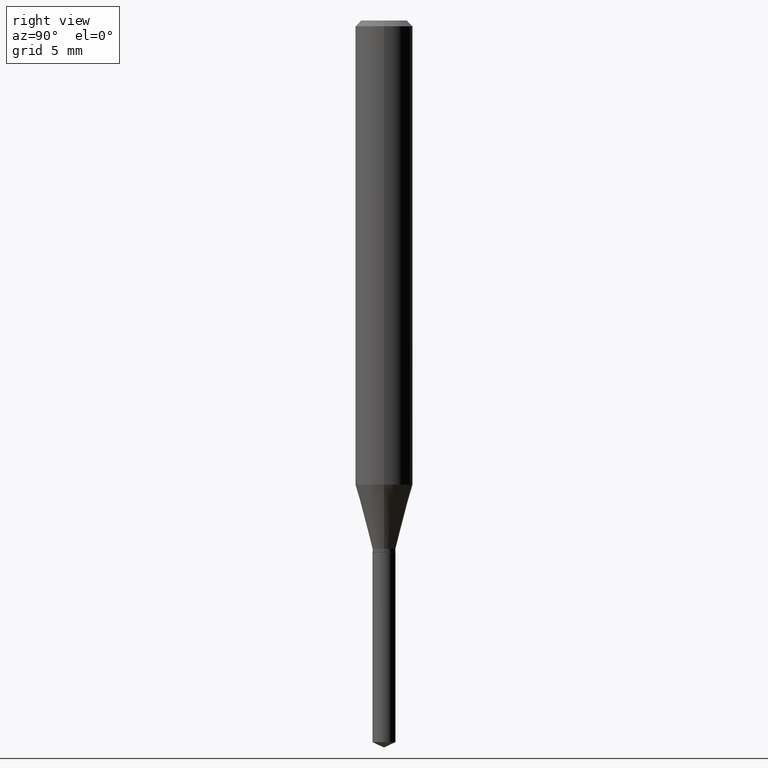
[diagram: clean part render]
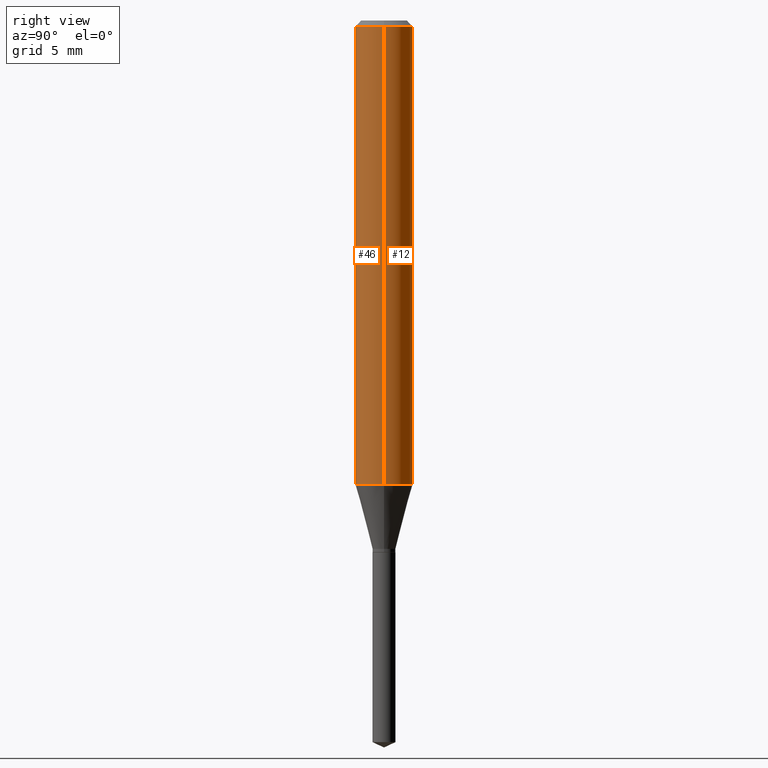
[diagram: same view with one multi-face feature highlighted, each face labeled with its STEP entity id]
A machine part, right view. The highlighted faces form ONE feature: a constant-radius fillet chain: 2 tangent blend faces with common blend radius 1.4999 mm. The faces share edges in the B-rep.
Their STEP definitions:
[1] entity #46 (Cylinder):
#6 = ORIENTED_EDGE ( 'NONE', *, *, #234, .F. ) ;
#10 = CARTESIAN_POINT ( 'NONE',  ( 0.000000000000000000, 0.000000000000000000, 0.000000000000000000 ) ) ;
#42 = DIRECTION ( 'NONE',  ( 1.000000000000000000, -6.982962677686266711E-15, 4.876176775795935793E-29 ) ) ;
#46 = ADVANCED_FACE ( 'NONE', ( #225 ), #81, .T. ) ;
#66 = CARTESIAN_POINT ( 'NONE',  ( 2.335664319465592728E-29, -3.334709633011983914E-15, -0.9550987988716830301 ) ) ;
#69 = LINE ( 'NONE', #207, #289 ) ;
#72 = CARTESIAN_POINT ( 'NONE',  ( 0.05904999999999999832, -4.535783407291118600E-16, -0.01181000000000007565 ) ) ;
#81 = CYLINDRICAL_SURFACE ( 'NONE', #330, 0.05905000000000006077 ) ;
#84 = ORIENTED_EDGE ( 'NONE', *, *, #427, .F. ) ;
#93 = VECTOR ( 'NONE', #224, 39.37007874015748143 ) ;
#141 = CARTESIAN_POINT ( 'NONE',  ( 2.888098660104664642E-31, -4.123439461173780879E-17, -0.01181000000000007565 ) ) ;
#148 = LINE ( 'NONE', #420, #93 ) ;
#175 = DIRECTION ( 'NONE',  ( -2.445468806185136877E-29, 3.491481338843145188E-15, 1.000000000000000000 ) ) ;
#207 = CARTESIAN_POINT ( 'NONE',  ( 0.05905000000000006077, -4.123439461173744764E-16, 2.879382386107503023E-30 ) ) ;
#211 = DIRECTION ( 'NONE',  ( 1.000000000000000000, -6.982962677686266711E-15, 0.000000000000000000 ) ) ;
#224 = DIRECTION ( 'NONE',  ( -2.445468806185136877E-29, 3.491481338843145188E-15, 1.000000000000000000 ) ) ;
#225 = FACE_OUTER_BOUND ( 'NONE', #328, .T. ) ;
#234 = EDGE_CURVE ( 'NONE', #428, #326, #272, .T. ) ;
#247 = EDGE_CURVE ( 'NONE', #452, #280, #415, .T. ) ;
#249 = CARTESIAN_POINT ( 'NONE',  ( 0.05905000000000011628, -3.747053579129358835E-15, -0.9550987988716830301 ) ) ;
#262 = ORIENTED_EDGE ( 'NONE', *, *, #247, .T. ) ;
#272 = CIRCLE ( 'NONE', #488, 0.05904999999999999832 ) ;
#280 = VERTEX_POINT ( 'NONE', #249 ) ;
#289 = VECTOR ( 'NONE', #175, 39.37007874015748143 ) ;
#296 = EDGE_CURVE ( 'NONE', #280, #326, #69, .T. ) ;
#325 = DIRECTION ( 'NONE',  ( -2.445468806185136597E-29, 3.491481338843145583E-15, 1.000000000000000000 ) ) ;
#326 = VERTEX_POINT ( 'NONE', #72 ) ;
#328 = EDGE_LOOP ( 'NONE', ( #84, #262, #361, #6 ) ) ;
#330 = AXIS2_PLACEMENT_3D ( 'NONE', #10, #382, #42 ) ;
#340 = CARTESIAN_POINT ( 'NONE',  ( -0.05904999999999999832, -1.268396528345520540E-15, -0.01181000000000007565 ) ) ;
#361 = ORIENTED_EDGE ( 'NONE', *, *, #296, .T. ) ;
#382 = DIRECTION ( 'NONE',  ( -2.445468806185136597E-29, 3.491481338843145583E-15, 1.000000000000000000 ) ) ;
#393 = CARTESIAN_POINT ( 'NONE',  ( -0.05905000000000011628, -2.915134147545643633E-15, -0.9550987988716830301 ) ) ;
#415 = CIRCLE ( 'NONE', #475, 0.05905000000000011628 ) ;
#420 = CARTESIAN_POINT ( 'NONE',  ( -0.05905000000000006077, 4.195754854663395916E-16, -2.904631170795524694E-30 ) ) ;
#427 = EDGE_CURVE ( 'NONE', #452, #428, #148, .T. ) ;
#428 = VERTEX_POINT ( 'NONE', #340 ) ;
#446 = DIRECTION ( 'NONE',  ( 1.000000000000000000, -6.982962677686266711E-15, 0.000000000000000000 ) ) ;
#452 = VERTEX_POINT ( 'NONE', #393 ) ;
#475 = AXIS2_PLACEMENT_3D ( 'NONE', #66, #485, #211 ) ;
#485 = DIRECTION ( 'NONE',  ( -2.445468806185136597E-29, 3.491481338843145583E-15, 1.000000000000000000 ) ) ;
#488 = AXIS2_PLACEMENT_3D ( 'NONE', #141, #325, #446 ) ;
[2] entity #12 (Cylinder):
#3 = FACE_OUTER_BOUND ( 'NONE', #297, .T. ) ;
#9 = ORIENTED_EDGE ( 'NONE', *, *, #427, .T. ) ;
#12 = ADVANCED_FACE ( 'NONE', ( #3 ), #294, .T. ) ;
#45 = CARTESIAN_POINT ( 'NONE',  ( 0.000000000000000000, 0.000000000000000000, 0.000000000000000000 ) ) ;
#55 = CARTESIAN_POINT ( 'NONE',  ( 2.335664319465592728E-29, -3.334709633011983914E-15, -0.9550987988716830301 ) ) ;
#69 = LINE ( 'NONE', #207, #289 ) ;
#72 = CARTESIAN_POINT ( 'NONE',  ( 0.05904999999999999832, -4.535783407291118600E-16, -0.01181000000000007565 ) ) ;
#93 = VECTOR ( 'NONE', #224, 39.37007874015748143 ) ;
#106 = EDGE_CURVE ( 'NONE', #280, #452, #112, .T. ) ;
#112 = CIRCLE ( 'NONE', #306, 0.05905000000000011628 ) ;
#148 = LINE ( 'NONE', #420, #93 ) ;
#156 = DIRECTION ( 'NONE',  ( -2.445468806185136597E-29, 3.491481338843145583E-15, 1.000000000000000000 ) ) ;
#174 = EDGE_CURVE ( 'NONE', #326, #428, #378, .T. ) ;
#175 = DIRECTION ( 'NONE',  ( -2.445468806185136877E-29, 3.491481338843145188E-15, 1.000000000000000000 ) ) ;
#207 = CARTESIAN_POINT ( 'NONE',  ( 0.05905000000000006077, -4.123439461173744764E-16, 2.879382386107503023E-30 ) ) ;
#224 = DIRECTION ( 'NONE',  ( -2.445468806185136877E-29, 3.491481338843145188E-15, 1.000000000000000000 ) ) ;
#226 = ORIENTED_EDGE ( 'NONE', *, *, #106, .T. ) ;
#238 = DIRECTION ( 'NONE',  ( 1.000000000000000000, -6.982962677686266711E-15, 0.000000000000000000 ) ) ;
#249 = CARTESIAN_POINT ( 'NONE',  ( 0.05905000000000011628, -3.747053579129358835E-15, -0.9550987988716830301 ) ) ;
#254 = ORIENTED_EDGE ( 'NONE', *, *, #296, .F. ) ;
#267 = AXIS2_PLACEMENT_3D ( 'NONE', #45, #156, #455 ) ;
#280 = VERTEX_POINT ( 'NONE', #249 ) ;
#289 = VECTOR ( 'NONE', #175, 39.37007874015748143 ) ;
#294 = CYLINDRICAL_SURFACE ( 'NONE', #267, 0.05905000000000006077 ) ;
#296 = EDGE_CURVE ( 'NONE', #280, #326, #69, .T. ) ;
#297 = EDGE_LOOP ( 'NONE', ( #226, #9, #376, #254 ) ) ;
#304 = DIRECTION ( 'NONE',  ( 1.000000000000000000, -6.982962677686266711E-15, 0.000000000000000000 ) ) ;
#306 = AXIS2_PLACEMENT_3D ( 'NONE', #55, #478, #238 ) ;
#318 = AXIS2_PLACEMENT_3D ( 'NONE', #403, #351, #304 ) ;
#326 = VERTEX_POINT ( 'NONE', #72 ) ;
#340 = CARTESIAN_POINT ( 'NONE',  ( -0.05904999999999999832, -1.268396528345520540E-15, -0.01181000000000007565 ) ) ;
#351 = DIRECTION ( 'NONE',  ( -2.445468806185136597E-29, 3.491481338843145583E-15, 1.000000000000000000 ) ) ;
#376 = ORIENTED_EDGE ( 'NONE', *, *, #174, .F. ) ;
#378 = CIRCLE ( 'NONE', #318, 0.05904999999999999832 ) ;
#393 = CARTESIAN_POINT ( 'NONE',  ( -0.05905000000000011628, -2.915134147545643633E-15, -0.9550987988716830301 ) ) ;
#403 = CARTESIAN_POINT ( 'NONE',  ( 2.888098660104664642E-31, -4.123439461173780879E-17, -0.01181000000000007565 ) ) ;
#420 = CARTESIAN_POINT ( 'NONE',  ( -0.05905000000000006077, 4.195754854663395916E-16, -2.904631170795524694E-30 ) ) ;
#427 = EDGE_CURVE ( 'NONE', #452, #428, #148, .T. ) ;
#428 = VERTEX_POINT ( 'NONE', #340 ) ;
#452 = VERTEX_POINT ( 'NONE', #393 ) ;
#455 = DIRECTION ( 'NONE',  ( 1.000000000000000000, -6.982962677686266711E-15, 4.876176775795935793E-29 ) ) ;
#478 = DIRECTION ( 'NONE',  ( -2.445468806185136597E-29, 3.491481338843145583E-15, 1.000000000000000000 ) ) ;